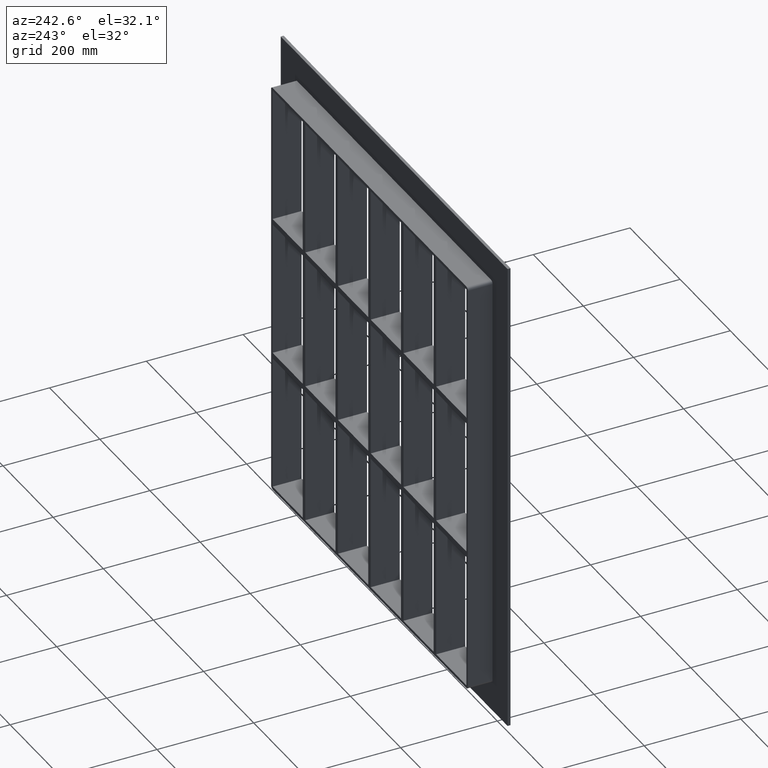
[diagram: clean part render]
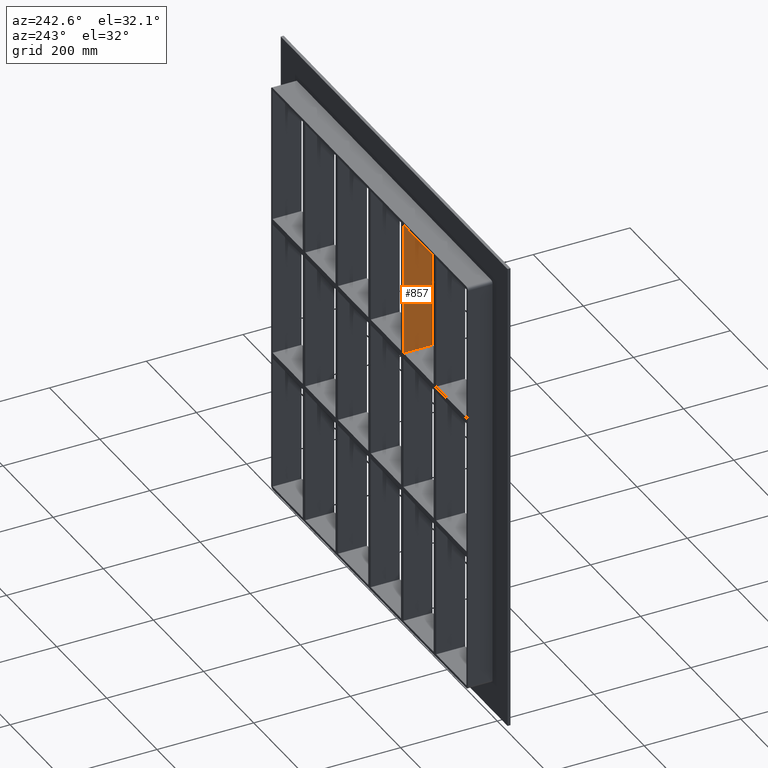
[diagram: same view with one face highlighted and labeled with its STEP entity id]
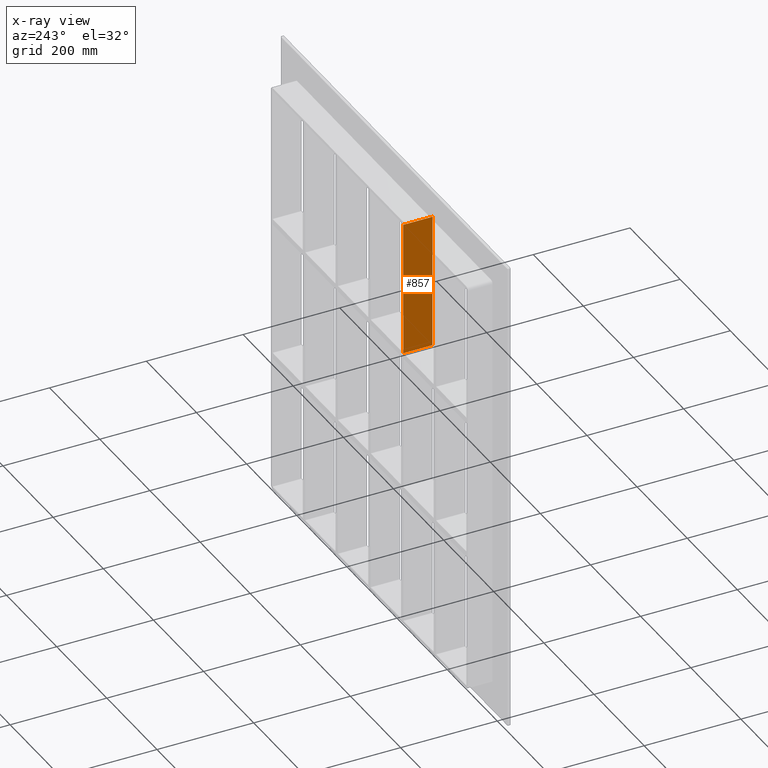
[diagram: x-ray of the same camera — body ghosted, the highlighted face saturated]
A machine part, auxiliary view. The second image highlights one B-rep face of the part: STEP entity #857.
The next image is the same camera in x-ray: the body ghosted, the highlighted face saturated — about 0% of this face is hidden behind the body in this view.
In plain terms, the highlighted planar face has unit normal (-1, 0, 0).
Its self-contained STEP definition (entity closure, byte-faithful):
#393=CARTESIAN_POINT('',(-135.50000000000139,57.0,150.99999999999994));
#394=VERTEX_POINT('',#393);
#395=CARTESIAN_POINT('',(-135.50000000000139,-3.0,150.99999999999994));
#396=VERTEX_POINT('',#395);
#397=CARTESIAN_POINT('',(-135.50000000000142,57.0,150.99999999999994));
#398=DIRECTION('',(0.0,-1.0,0.0));
#399=VECTOR('',#398,60.0);
#400=LINE('',#397,#399);
#401=EDGE_CURVE('',#394,#396,#400,.T.);
#827=CARTESIAN_POINT('',(-135.50000000000136,-3.0,-429.00000000000006));
#828=DIRECTION('',(-1.0,0.0,0.0));
#829=DIRECTION('',(0.0,0.0,1.0));
#830=AXIS2_PLACEMENT_3D('',#827,#828,#829);
#831=PLANE('',#830);
#832=ORIENTED_EDGE('',*,*,#401,.T.);
#833=CARTESIAN_POINT('',(-135.50000000000142,-3.0,429.00000000000006));
#834=VERTEX_POINT('',#833);
#835=CARTESIAN_POINT('',(-135.50000000000142,-3.0,150.99999999999994));
#836=DIRECTION('',(0.0,0.0,1.0));
#837=VECTOR('',#836,278.00000000000011);
#838=LINE('',#835,#837);
#839=EDGE_CURVE('',#396,#834,#838,.T.);
#840=ORIENTED_EDGE('',*,*,#839,.T.);
#841=CARTESIAN_POINT('',(-135.50000000000142,57.0,429.00000000000006));
#842=VERTEX_POINT('',#841);
#843=CARTESIAN_POINT('',(-135.50000000000145,57.000000000000007,429.00000000000006));
#844=DIRECTION('',(0.0,-1.0,0.0));
#845=VECTOR('',#844,60.000000000000007);
#846=LINE('',#843,#845);
#847=EDGE_CURVE('',#842,#834,#846,.T.);
#848=ORIENTED_EDGE('',*,*,#847,.F.);
#849=CARTESIAN_POINT('',(-135.50000000000142,57.0,150.99999999999994));
#850=DIRECTION('',(0.0,0.0,1.0));
#851=VECTOR('',#850,278.00000000000011);
#852=LINE('',#849,#851);
#853=EDGE_CURVE('',#394,#842,#852,.T.);
#854=ORIENTED_EDGE('',*,*,#853,.F.);
#855=EDGE_LOOP('',(#832,#840,#848,#854));
#856=FACE_OUTER_BOUND('',#855,.T.);
#857=ADVANCED_FACE('',(#856),#831,.T.);